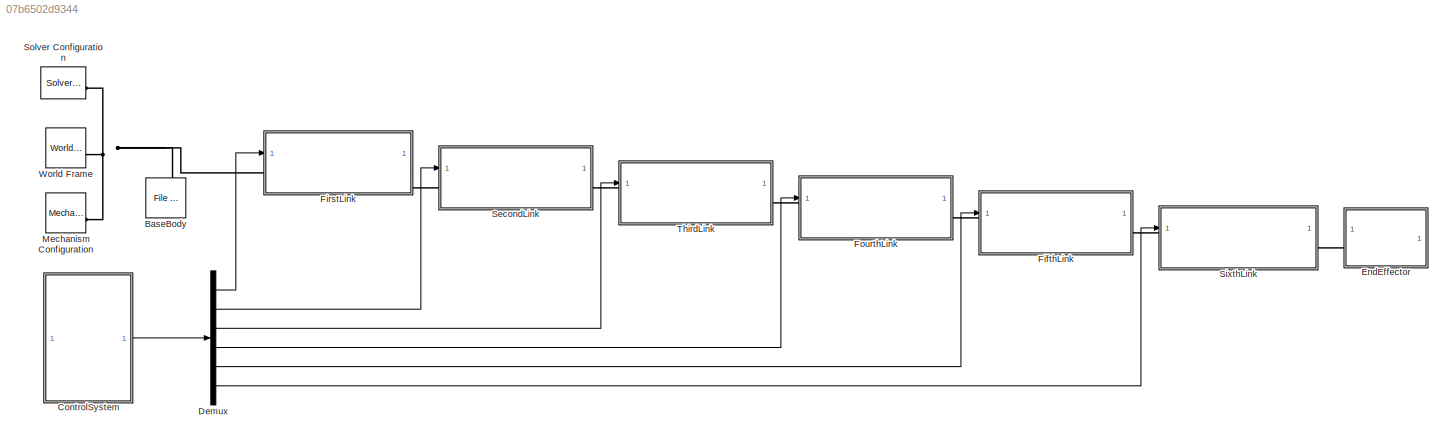
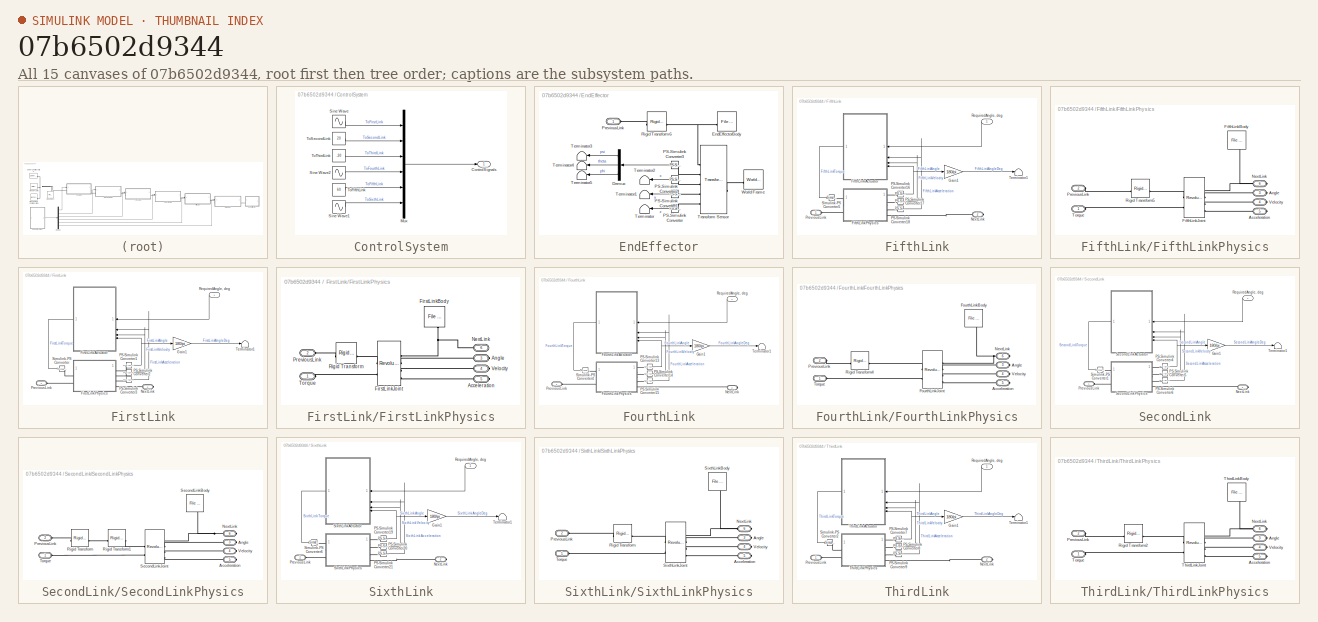
[diagram: thumbnail index - all 15 canvases of the model, root first then tree order]
MODEL slx_07b6502d9344
KIND model
CONFIG AbsTol = auto
CONFIG EnableMultiTasking = off
CONFIG FixedStep = auto
CONFIG MaxStep = 0.01
CONFIG MinStep = auto
CONFIG RelTol = 1e-3
CONFIG SampleTimeConstraint = Unconstrained
CONFIG SolverName = ode23t
CONFIG StartTime = 0.0
CONFIG StopTime = 20
BLOCK [Reference] BaseBody  REF=sm_lib/Body Elements/File Solid
  SourceBlock = sm_lib/Body Elements/File Solid
  SourceType = File Solid
BLOCK [SubSystem] ControlSystem
BLOCK [Outport] ControlSystem/ControlSignals
  NameLocation = right
BLOCK [Mux] ControlSystem/Mux
  DisplayOption = bar
  Inputs = 6
BLOCK [Sin] ControlSystem/Sine Wave
  Amplitude = 30
  Bias = 60
  SampleTime = 0
BLOCK [Sin] ControlSystem/Sine Wave1
  Amplitude = 60
  Bias = 45
  Frequency = 3
  SampleTime = 0
BLOCK [Sin] ControlSystem/Sine Wave2
  Amplitude = 15
  Bias = 45
  Frequency = 3
  SampleTime = 0
BLOCK [Constant] ControlSystem/ToFifthLink
  NameLocation = left
  Value = 60
BLOCK [Constant] ControlSystem/ToSecondLink
  NameLocation = left
  Value = 20
BLOCK [Constant] ControlSystem/ToThirdLink
  NameLocation = left
  Value = -30
BLOCK [Demux] Demux
  Outputs = 6
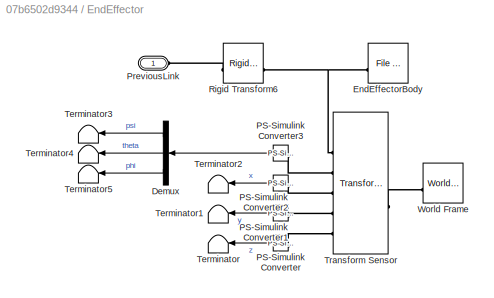
BLOCK [SubSystem] EndEffector
BLOCK [Demux] EndEffector/Demux
  NameLocation = top
  Outputs = 3
BLOCK [Reference] EndEffector/EndEffectorBody  REF=sm_lib/Body Elements/File Solid
  NameLocation = right
  SourceBlock = sm_lib/Body Elements/File Solid
  SourceType = File Solid
BLOCK [Reference] EndEffector/PS-Simulink Converter  REF=nesl_utility/PS-Simulink
Converter
  NameLocation = top
  SourceBlock = nesl_utility/PS-Simulink\nConverter
  SourceType = PS-Simulink\nConverter
BLOCK [Reference] EndEffector/PS-Simulink Converter1  REF=nesl_utility/PS-Simulink
Converter
  NameLocation = top
  SourceBlock = nesl_utility/PS-Simulink\nConverter
  SourceType = PS-Simulink\nConverter
BLOCK [Reference] EndEffector/PS-Simulink Converter2  REF=nesl_utility/PS-Simulink
Converter
  NameLocation = top
  SourceBlock = nesl_utility/PS-Simulink\nConverter
  SourceType = PS-Simulink\nConverter
BLOCK [Reference] EndEffector/PS-Simulink Converter3  REF=nesl_utility/PS-Simulink
Converter
  NameLocation = top
  SourceBlock = nesl_utility/PS-Simulink\nConverter
  SourceType = PS-Simulink\nConverter
BLOCK [PMIOPort] EndEffector/PreviousLink
  Side = Left
BLOCK [Reference] EndEffector/Rigid Transform6  REF=sm_lib/Frames and
Transforms/Rigid
Transform
  SourceBlock = sm_lib/Frames and\nTransforms/Rigid\nTransform
  SourceType = Rigid\nTransform
BLOCK [Terminator] EndEffector/Terminator
  NameLocation = top
BLOCK [Terminator] EndEffector/Terminator1
  NameLocation = top
BLOCK [Terminator] EndEffector/Terminator2
  NameLocation = top
BLOCK [Terminator] EndEffector/Terminator3
  NameLocation = top
BLOCK [Terminator] EndEffector/Terminator4
  NameLocation = top
BLOCK [Terminator] EndEffector/Terminator5
  NameLocation = top
BLOCK [Reference] EndEffector/Transform Sensor  REF=sm_lib/Frames and
Transforms/Transform
Sensor
  NameLocation = top
  SourceBlock = sm_lib/Frames and\nTransforms/Transform\nSensor
  SourceType = Transform\nSensor
BLOCK [Reference] EndEffector/World Frame  REF=sm_lib/Frames and
Transforms/World Frame
  NameLocation = top
  SourceBlock = sm_lib/Frames and\nTransforms/World Frame
  SourceType = World Frame
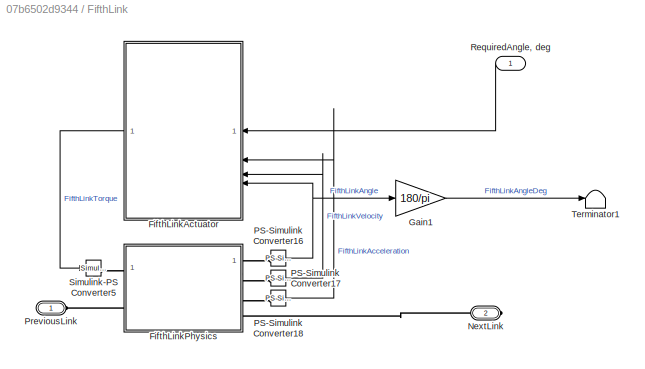
BLOCK [SubSystem] FifthLink
  PortSchema = {"entries":[{"content":{"sides":[{"content":{"connectorIds":["LConn1","In1"]},"type":"ConnectorPlacement.EquallySpacedRectSide","uuid":"59137c6e-e982-4e9a-8887-9c851b27c4d0"},{"content":{"connectorIds":["RConn1"],"side":"RIGHT"},"type":"ConnectorPlacement.EquallySpacedRectSide","uuid":"3006ed02-36e2-47dc-847a-44ef2bf55218"},{"content":{"side":"TOP"},"type":"ConnectorPlacement.EquallySpacedRectSide...<+233ch>  <repeated x6 — deduplicated; at blocks: FifthLink, FirstLink, FourthLink, SecondLink, SixthLink, ThirdLink>
BLOCK [SubSystem] FifthLink/FifthLinkActuator
  K = 10
  K1 = 0.05
  K2 = 10
  K3 = 100
  Kv = 10
  NameLocation = top
  ReferencedSubsystem = Actuator
  TreatAsAtomicUnit = on
BLOCK [SubSystem] FifthLink/FifthLinkPhysics
BLOCK [PMIOPort] FifthLink/FifthLinkPhysics/Acceleration
  NameLocation = right
  Port = 5
  Side = Right
BLOCK [PMIOPort] FifthLink/FifthLinkPhysics/Angle
  NameLocation = right
  Port = 3
  Side = Right
BLOCK [Reference] FifthLink/FifthLinkPhysics/FifthLinkBody  REF=sm_lib/Body Elements/File Solid
  NameLocation = top
  SourceBlock = sm_lib/Body Elements/File Solid
  SourceType = File Solid
BLOCK [Reference] FifthLink/FifthLinkPhysics/FifthLinkJoint  REF=sm_lib/Joints/Revolute Joint
  SourceBlock = sm_lib/Joints/Revolute Joint
  SourceType = Revolute Joint
BLOCK [PMIOPort] FifthLink/FifthLinkPhysics/NextLink
  NameLocation = right
  Port = 6
  Side = Right
BLOCK [PMIOPort] FifthLink/FifthLinkPhysics/PreviousLink
  Port = 2
  Side = Left
BLOCK [Reference] FifthLink/FifthLinkPhysics/Rigid Transform5  REF=sm_lib/Frames and
Transforms/Rigid
Transform
  SourceBlock = sm_lib/Frames and\nTransforms/Rigid\nTransform
  SourceType = Rigid\nTransform
BLOCK [PMIOPort] FifthLink/FifthLinkPhysics/Torque
  Side = Left
BLOCK [PMIOPort] FifthLink/FifthLinkPhysics/Velocity
  NameLocation = right
  Port = 4
  Side = Right
BLOCK [Gain] FifthLink/Gain1
  Gain = 180/pi
BLOCK [PMIOPort] FifthLink/NextLink
  Port = 2
  Side = Right
BLOCK [Reference] FifthLink/PS-Simulink Converter16  REF=nesl_utility/PS-Simulink
Converter
  SourceBlock = nesl_utility/PS-Simulink\nConverter
  SourceType = PS-Simulink\nConverter
BLOCK [Reference] FifthLink/PS-Simulink Converter17  REF=nesl_utility/PS-Simulink
Converter
  SourceBlock = nesl_utility/PS-Simulink\nConverter
  SourceType = PS-Simulink\nConverter
BLOCK [Reference] FifthLink/PS-Simulink Converter18  REF=nesl_utility/PS-Simulink
Converter
  SourceBlock = nesl_utility/PS-Simulink\nConverter
  SourceType = PS-Simulink\nConverter
BLOCK [PMIOPort] FifthLink/PreviousLink
  Side = Left
BLOCK [Inport] FifthLink/RequiredAngle, deg
  NameLocation = top
BLOCK [Reference] FifthLink/Simulink-PS Converter5  REF=nesl_utility/Simulink-PS
Converter
  SourceBlock = nesl_utility/Simulink-PS\nConverter
  SourceType = Simulink-PS\nConverter
BLOCK [Terminator] FifthLink/Terminator1
BLOCK [SubSystem] FirstLink
BLOCK [SubSystem] FirstLink/FirstLinkActuator
  K = 10
  K1 = 0.05
  K2 = 10
  K3 = 300
  Kv = 10
  NameLocation = top
  ReferencedSubsystem = Actuator
  TreatAsAtomicUnit = on
BLOCK [SubSystem] FirstLink/FirstLinkPhysics
BLOCK [PMIOPort] FirstLink/FirstLinkPhysics/Acceleration
  NameLocation = right
  Port = 5
  Side = Right
BLOCK [PMIOPort] FirstLink/FirstLinkPhysics/Angle
  NameLocation = right
  Port = 3
  Side = Right
BLOCK [Reference] FirstLink/FirstLinkPhysics/FirstLinkBody  REF=sm_lib/Body Elements/File Solid
  NameLocation = top
  SourceBlock = sm_lib/Body Elements/File Solid
  SourceType = File Solid
BLOCK [Reference] FirstLink/FirstLinkPhysics/FirstLinkJoint  REF=sm_lib/Joints/Revolute Joint
  SourceBlock = sm_lib/Joints/Revolute Joint
  SourceType = Revolute Joint
BLOCK [PMIOPort] FirstLink/FirstLinkPhysics/NextLink
  NameLocation = right
  Port = 6
  Side = Right
BLOCK [PMIOPort] FirstLink/FirstLinkPhysics/PreviousLink
  Port = 2
  Side = Left
BLOCK [Reference] FirstLink/FirstLinkPhysics/Rigid Transform  REF=sm_lib/Frames and
Transforms/Rigid
Transform
  NameLocation = top
  SourceBlock = sm_lib/Frames and\nTransforms/Rigid\nTransform
  SourceType = Rigid\nTransform
BLOCK [PMIOPort] FirstLink/FirstLinkPhysics/Torque
  Side = Left
BLOCK [PMIOPort] FirstLink/FirstLinkPhysics/Velocity
  NameLocation = right
  Port = 4
  Side = Right
BLOCK [Gain] FirstLink/Gain1
  Gain = 180/pi
BLOCK [PMIOPort] FirstLink/NextLink
  Port = 2
  Side = Right
BLOCK [Reference] FirstLink/PS-Simulink Converter1  REF=nesl_utility/PS-Simulink
Converter
  SourceBlock = nesl_utility/PS-Simulink\nConverter
  SourceType = PS-Simulink\nConverter
BLOCK [Reference] FirstLink/PS-Simulink Converter2  REF=nesl_utility/PS-Simulink
Converter
  SourceBlock = nesl_utility/PS-Simulink\nConverter
  SourceType = PS-Simulink\nConverter
BLOCK [Reference] FirstLink/PS-Simulink Converter3  REF=nesl_utility/PS-Simulink
Converter
  SourceBlock = nesl_utility/PS-Simulink\nConverter
  SourceType = PS-Simulink\nConverter
BLOCK [PMIOPort] FirstLink/PreviousLink
  Side = Left
BLOCK [Inport] FirstLink/RequiredAngle, deg
  NameLocation = top
BLOCK [Reference] FirstLink/Simulink-PS Converter  REF=nesl_utility/Simulink-PS
Converter
  SourceBlock = nesl_utility/Simulink-PS\nConverter
  SourceType = Simulink-PS\nConverter
BLOCK [Terminator] FirstLink/Terminator1
BLOCK [SubSystem] FourthLink
BLOCK [SubSystem] FourthLink/FourthLinkActuator
  K = 10
  K1 = 0.05
  K2 = 10
  K3 = 100
  Kv = 10
  NameLocation = top
  ReferencedSubsystem = Actuator
  TreatAsAtomicUnit = on
BLOCK [SubSystem] FourthLink/FourthLinkPhysics
BLOCK [PMIOPort] FourthLink/FourthLinkPhysics/Acceleration
  NameLocation = right
  Port = 5
  Side = Right
BLOCK [PMIOPort] FourthLink/FourthLinkPhysics/Angle
  NameLocation = right
  Port = 3
  Side = Right
BLOCK [Reference] FourthLink/FourthLinkPhysics/FourthLinkBody  REF=sm_lib/Body Elements/File Solid
  NameLocation = top
  SourceBlock = sm_lib/Body Elements/File Solid
  SourceType = File Solid
BLOCK [Reference] FourthLink/FourthLinkPhysics/FourthLinkJoint  REF=sm_lib/Joints/Revolute Joint
  SourceBlock = sm_lib/Joints/Revolute Joint
  SourceType = Revolute Joint
BLOCK [PMIOPort] FourthLink/FourthLinkPhysics/NextLink
  NameLocation = right
  Port = 6
  Side = Right
BLOCK [PMIOPort] FourthLink/FourthLinkPhysics/PreviousLink
  Port = 2
  Side = Left
BLOCK [Reference] FourthLink/FourthLinkPhysics/Rigid Transform4  REF=sm_lib/Frames and
Transforms/Rigid
Transform
  SourceBlock = sm_lib/Frames and\nTransforms/Rigid\nTransform
  SourceType = Rigid\nTransform
BLOCK [PMIOPort] FourthLink/FourthLinkPhysics/Torque
  Side = Left
BLOCK [PMIOPort] FourthLink/FourthLinkPhysics/Velocity
  NameLocation = right
  Port = 4
  Side = Right
BLOCK [Gain] FourthLink/Gain1
  Gain = 180/pi
BLOCK [PMIOPort] FourthLink/NextLink
  Port = 2
  Side = Right
BLOCK [Reference] FourthLink/PS-Simulink Converter13  REF=nesl_utility/PS-Simulink
Converter
  SourceBlock = nesl_utility/PS-Simulink\nConverter
  SourceType = PS-Simulink\nConverter
BLOCK [Reference] FourthLink/PS-Simulink Converter14  REF=nesl_utility/PS-Simulink
Converter
  SourceBlock = nesl_utility/PS-Simulink\nConverter
  SourceType = PS-Simulink\nConverter
BLOCK [Reference] FourthLink/PS-Simulink Converter15  REF=nesl_utility/PS-Simulink
Converter
  SourceBlock = nesl_utility/PS-Simulink\nConverter
  SourceType = PS-Simulink\nConverter
BLOCK [PMIOPort] FourthLink/PreviousLink
  Side = Left
BLOCK [Inport] FourthLink/RequiredAngle, deg
  NameLocation = top
BLOCK [Reference] FourthLink/Simulink-PS Converter4  REF=nesl_utility/Simulink-PS
Converter
  SourceBlock = nesl_utility/Simulink-PS\nConverter
  SourceType = Simulink-PS\nConverter
BLOCK [Terminator] FourthLink/Terminator1
BLOCK [Reference] Mechanism Configuration  REF=sm_lib/Utilities/Mechanism
Configuration
  SourceBlock = sm_lib/Utilities/Mechanism\nConfiguration
  SourceType = Mechanism\nConfiguration
BLOCK [SubSystem] SecondLink
BLOCK [Gain] SecondLink/Gain1
  Gain = 180/pi
BLOCK [PMIOPort] SecondLink/NextLink
  Port = 2
  Side = Right
BLOCK [Reference] SecondLink/PS-Simulink Converter4  REF=nesl_utility/PS-Simulink
Converter
  SourceBlock = nesl_utility/PS-Simulink\nConverter
  SourceType = PS-Simulink\nConverter
BLOCK [Reference] SecondLink/PS-Simulink Converter5  REF=nesl_utility/PS-Simulink
Converter
  SourceBlock = nesl_utility/PS-Simulink\nConverter
  SourceType = PS-Simulink\nConverter
BLOCK [Reference] SecondLink/PS-Simulink Converter6  REF=nesl_utility/PS-Simulink
Converter
  SourceBlock = nesl_utility/PS-Simulink\nConverter
  SourceType = PS-Simulink\nConverter
BLOCK [PMIOPort] SecondLink/PreviousLink
  Side = Left
BLOCK [Inport] SecondLink/RequiredAngle, deg
  NameLocation = top
BLOCK [SubSystem] SecondLink/SecondLinkActuator
  K = 10
  K1 = 0.05
  K2 = 50
  K3 = 100
  Kv = 15
  NameLocation = top
  ReferencedSubsystem = Actuator
  TreatAsAtomicUnit = on
BLOCK [SubSystem] SecondLink/SecondLinkPhysics
BLOCK [PMIOPort] SecondLink/SecondLinkPhysics/Acceleration
  NameLocation = right
  Port = 5
  Side = Right
BLOCK [PMIOPort] SecondLink/SecondLinkPhysics/Angle
  NameLocation = right
  Port = 3
  Side = Right
BLOCK [PMIOPort] SecondLink/SecondLinkPhysics/NextLink
  NameLocation = right
  Port = 6
  Side = Right
BLOCK [PMIOPort] SecondLink/SecondLinkPhysics/PreviousLink
  Port = 2
  Side = Left
BLOCK [Reference] SecondLink/SecondLinkPhysics/Rigid Transform  REF=sm_lib/Frames and
Transforms/Rigid
Transform
  SourceBlock = sm_lib/Frames and\nTransforms/Rigid\nTransform
  SourceType = Rigid\nTransform
BLOCK [Reference] SecondLink/SecondLinkPhysics/Rigid Transform1  REF=sm_lib/Frames and
Transforms/Rigid
Transform
  SourceBlock = sm_lib/Frames and\nTransforms/Rigid\nTransform
  SourceType = Rigid\nTransform
BLOCK [Reference] SecondLink/SecondLinkPhysics/SecondLinkBody  REF=sm_lib/Body Elements/File Solid
  NameLocation = top
  SourceBlock = sm_lib/Body Elements/File Solid
  SourceType = File Solid
BLOCK [Reference] SecondLink/SecondLinkPhysics/SecondLinkJoint  REF=sm_lib/Joints/Revolute Joint
  SourceBlock = sm_lib/Joints/Revolute Joint
  SourceType = Revolute Joint
BLOCK [PMIOPort] SecondLink/SecondLinkPhysics/Torque
  Side = Left
BLOCK [PMIOPort] SecondLink/SecondLinkPhysics/Velocity
  NameLocation = right
  Port = 4
  Side = Right
BLOCK [Reference] SecondLink/Simulink-PS Converter1  REF=nesl_utility/Simulink-PS
Converter
  SourceBlock = nesl_utility/Simulink-PS\nConverter
  SourceType = Simulink-PS\nConverter
BLOCK [Terminator] SecondLink/Terminator1
BLOCK [SubSystem] SixthLink
BLOCK [Gain] SixthLink/Gain1
  Gain = 180/pi
BLOCK [PMIOPort] SixthLink/NextLink
  Port = 2
  Side = Right
BLOCK [Reference] SixthLink/PS-Simulink Converter19  REF=nesl_utility/PS-Simulink
Converter
  SourceBlock = nesl_utility/PS-Simulink\nConverter
  SourceType = PS-Simulink\nConverter
BLOCK [Reference] SixthLink/PS-Simulink Converter20  REF=nesl_utility/PS-Simulink
Converter
  SourceBlock = nesl_utility/PS-Simulink\nConverter
  SourceType = PS-Simulink\nConverter
BLOCK [Reference] SixthLink/PS-Simulink Converter21  REF=nesl_utility/PS-Simulink
Converter
  SourceBlock = nesl_utility/PS-Simulink\nConverter
  SourceType = PS-Simulink\nConverter
BLOCK [PMIOPort] SixthLink/PreviousLink
  Side = Left
BLOCK [Inport] SixthLink/RequiredAngle, deg
  NameLocation = top
BLOCK [Reference] SixthLink/Simulink-PS Converter6  REF=nesl_utility/Simulink-PS
Converter
  SourceBlock = nesl_utility/Simulink-PS\nConverter
  SourceType = Simulink-PS\nConverter
BLOCK [SubSystem] SixthLink/SixthLinkActuator
  K = 10
  K1 = 0.05
  K2 = 10
  K3 = 100
  Kv = 10
  NameLocation = top
  ReferencedSubsystem = Actuator
  TreatAsAtomicUnit = on
BLOCK [SubSystem] SixthLink/SixthLinkPhysics
BLOCK [PMIOPort] SixthLink/SixthLinkPhysics/Acceleration
  NameLocation = right
  Port = 5
  Side = Right
BLOCK [PMIOPort] SixthLink/SixthLinkPhysics/Angle
  NameLocation = right
  Port = 3
  Side = Right
BLOCK [PMIOPort] SixthLink/SixthLinkPhysics/NextLink
  NameLocation = right
  Port = 6
  Side = Right
BLOCK [PMIOPort] SixthLink/SixthLinkPhysics/PreviousLink
  Port = 2
  Side = Left
BLOCK [Reference] SixthLink/SixthLinkPhysics/Rigid Transform  REF=sm_lib/Frames and
Transforms/Rigid
Transform
  NameLocation = top
  SourceBlock = sm_lib/Frames and\nTransforms/Rigid\nTransform
  SourceType = Rigid\nTransform
BLOCK [Reference] SixthLink/SixthLinkPhysics/SixthLinkBody  REF=sm_lib/Body Elements/File Solid
  NameLocation = top
  SourceBlock = sm_lib/Body Elements/File Solid
  SourceType = File Solid
BLOCK [Reference] SixthLink/SixthLinkPhysics/SixthLinkJoint  REF=sm_lib/Joints/Revolute Joint
  SourceBlock = sm_lib/Joints/Revolute Joint
  SourceType = Revolute Joint
BLOCK [PMIOPort] SixthLink/SixthLinkPhysics/Torque
  Side = Left
BLOCK [PMIOPort] SixthLink/SixthLinkPhysics/Velocity
  NameLocation = right
  Port = 4
  Side = Right
BLOCK [Terminator] SixthLink/Terminator1
BLOCK [Reference] Solver Configuration  REF=nesl_utility/Solver
Configuration
  SourceBlock = nesl_utility/Solver\nConfiguration
  SourceType = Solver\nConfiguration
BLOCK [SubSystem] ThirdLink
BLOCK [Gain] ThirdLink/Gain1
  Gain = 180/pi
BLOCK [PMIOPort] ThirdLink/NextLink
  Port = 2
  Side = Right
BLOCK [Reference] ThirdLink/PS-Simulink Converter7  REF=nesl_utility/PS-Simulink
Converter
  SourceBlock = nesl_utility/PS-Simulink\nConverter
  SourceType = PS-Simulink\nConverter
BLOCK [Reference] ThirdLink/PS-Simulink Converter8  REF=nesl_utility/PS-Simulink
Converter
  SourceBlock = nesl_utility/PS-Simulink\nConverter
  SourceType = PS-Simulink\nConverter
BLOCK [Reference] ThirdLink/PS-Simulink Converter9  REF=nesl_utility/PS-Simulink
Converter
  SourceBlock = nesl_utility/PS-Simulink\nConverter
  SourceType = PS-Simulink\nConverter
BLOCK [PMIOPort] ThirdLink/PreviousLink
  Side = Left
BLOCK [Inport] ThirdLink/RequiredAngle, deg
  NameLocation = top
BLOCK [Reference] ThirdLink/Simulink-PS Converter2  REF=nesl_utility/Simulink-PS
Converter
  SourceBlock = nesl_utility/Simulink-PS\nConverter
  SourceType = Simulink-PS\nConverter
BLOCK [Terminator] ThirdLink/Terminator1
BLOCK [SubSystem] ThirdLink/ThirdLinkActuator
  K = 10
  K1 = 0.05
  K2 = 10
  K3 = 1000
  Kv = 10
  NameLocation = top
  ReferencedSubsystem = Actuator
  TreatAsAtomicUnit = on
BLOCK [SubSystem] ThirdLink/ThirdLinkPhysics
BLOCK [PMIOPort] ThirdLink/ThirdLinkPhysics/Acceleration
  NameLocation = right
  Port = 5
  Side = Right
BLOCK [PMIOPort] ThirdLink/ThirdLinkPhysics/Angle
  NameLocation = right
  Port = 3
  Side = Right
BLOCK [PMIOPort] ThirdLink/ThirdLinkPhysics/NextLink
  NameLocation = right
  Port = 6
  Side = Right
BLOCK [PMIOPort] ThirdLink/ThirdLinkPhysics/PreviousLink
  Port = 2
  Side = Left
BLOCK [Reference] ThirdLink/ThirdLinkPhysics/Rigid Transform2  REF=sm_lib/Frames and
Transforms/Rigid
Transform
  SourceBlock = sm_lib/Frames and\nTransforms/Rigid\nTransform
  SourceType = Rigid\nTransform
BLOCK [Reference] ThirdLink/ThirdLinkPhysics/ThirdLinkBody  REF=sm_lib/Body Elements/File Solid
  NameLocation = top
  SourceBlock = sm_lib/Body Elements/File Solid
  SourceType = File Solid
BLOCK [Reference] ThirdLink/ThirdLinkPhysics/ThirdLinkJoint  REF=sm_lib/Joints/Revolute Joint
  SourceBlock = sm_lib/Joints/Revolute Joint
  SourceType = Revolute Joint
BLOCK [PMIOPort] ThirdLink/ThirdLinkPhysics/Torque
  Side = Left
BLOCK [PMIOPort] ThirdLink/ThirdLinkPhysics/Velocity
  NameLocation = right
  Port = 4
  Side = Right
BLOCK [Reference] World Frame  REF=sm_lib/Frames and
Transforms/World Frame
  SourceBlock = sm_lib/Frames and\nTransforms/World Frame
  SourceType = World Frame
LINE ControlSystem/Mux:1 -> ControlSystem/ControlSignals:1
LINE ControlSystem/Sine Wave1:1 -> ControlSystem/Mux:6
LINE ControlSystem/Sine Wave2:1 -> ControlSystem/Mux:4
LINE ControlSystem/Sine Wave:1 -> ControlSystem/Mux:1
LINE ControlSystem/ToFifthLink:1 -> ControlSystem/Mux:5
LINE ControlSystem/ToSecondLink:1 -> ControlSystem/Mux:2
LINE ControlSystem/ToThirdLink:1 -> ControlSystem/Mux:3
LINE ControlSystem:1 -> Demux:1
LINE Demux:1 -> FirstLink:1
LINE Demux:2 -> SecondLink:1
LINE Demux:3 -> ThirdLink:1
LINE Demux:4 -> FourthLink:1
LINE Demux:5 -> FifthLink:1
LINE Demux:6 -> SixthLink:1
LINE EndEffector/Demux:1 -> EndEffector/Terminator3:1
LINE EndEffector/Demux:2 -> EndEffector/Terminator4:1
LINE EndEffector/Demux:3 -> EndEffector/Terminator5:1
LINE EndEffector/PS-Simulink Converter1:1 -> EndEffector/Terminator1:1
LINE EndEffector/PS-Simulink Converter2:1 -> EndEffector/Terminator2:1
LINE EndEffector/PS-Simulink Converter3:1 -> EndEffector/Demux:1
LINE EndEffector/PS-Simulink Converter:1 -> EndEffector/Terminator:1
LINE FifthLink/FifthLinkActuator:1 -> FifthLink/Simulink-PS Converter5:1
LINE FifthLink/Gain1:1 -> FifthLink/Terminator1:1
NET FifthLink/PS-Simulink Converter16:1 -> FifthLink/FifthLinkActuator:4, FifthLink/Gain1:1
LINE FifthLink/PS-Simulink Converter17:1 -> FifthLink/FifthLinkActuator:3
LINE FifthLink/PS-Simulink Converter18:1 -> FifthLink/FifthLinkActuator:2
LINE FifthLink/RequiredAngle, deg:1 -> FifthLink/FifthLinkActuator:1
LINE FirstLink/FirstLinkActuator:1 -> FirstLink/Simulink-PS Converter:1
LINE FirstLink/Gain1:1 -> FirstLink/Terminator1:1
NET FirstLink/PS-Simulink Converter1:1 -> FirstLink/FirstLinkActuator:4, FirstLink/Gain1:1
LINE FirstLink/PS-Simulink Converter2:1 -> FirstLink/FirstLinkActuator:3
LINE FirstLink/PS-Simulink Converter3:1 -> FirstLink/FirstLinkActuator:2
LINE FirstLink/RequiredAngle, deg:1 -> FirstLink/FirstLinkActuator:1
LINE FourthLink/FourthLinkActuator:1 -> FourthLink/Simulink-PS Converter4:1
LINE FourthLink/Gain1:1 -> FourthLink/Terminator1:1
NET FourthLink/PS-Simulink Converter13:1 -> FourthLink/FourthLinkActuator:4, FourthLink/Gain1:1
LINE FourthLink/PS-Simulink Converter14:1 -> FourthLink/FourthLinkActuator:3
LINE FourthLink/PS-Simulink Converter15:1 -> FourthLink/FourthLinkActuator:2
LINE FourthLink/RequiredAngle, deg:1 -> FourthLink/FourthLinkActuator:1
LINE SecondLink/Gain1:1 -> SecondLink/Terminator1:1
NET SecondLink/PS-Simulink Converter4:1 -> SecondLink/Gain1:1, SecondLink/SecondLinkActuator:4
LINE SecondLink/PS-Simulink Converter5:1 -> SecondLink/SecondLinkActuator:3
LINE SecondLink/PS-Simulink Converter6:1 -> SecondLink/SecondLinkActuator:2
LINE SecondLink/RequiredAngle, deg:1 -> SecondLink/SecondLinkActuator:1
LINE SecondLink/SecondLinkActuator:1 -> SecondLink/Simulink-PS Converter1:1
LINE SixthLink/Gain1:1 -> SixthLink/Terminator1:1
NET SixthLink/PS-Simulink Converter19:1 -> SixthLink/Gain1:1, SixthLink/SixthLinkActuator:4
LINE SixthLink/PS-Simulink Converter20:1 -> SixthLink/SixthLinkActuator:3
LINE SixthLink/PS-Simulink Converter21:1 -> SixthLink/SixthLinkActuator:2
LINE SixthLink/RequiredAngle, deg:1 -> SixthLink/SixthLinkActuator:1
LINE SixthLink/SixthLinkActuator:1 -> SixthLink/Simulink-PS Converter6:1
LINE ThirdLink/Gain1:1 -> ThirdLink/Terminator1:1
NET ThirdLink/PS-Simulink Converter7:1 -> ThirdLink/Gain1:1, ThirdLink/ThirdLinkActuator:4
LINE ThirdLink/PS-Simulink Converter8:1 -> ThirdLink/ThirdLinkActuator:3
LINE ThirdLink/PS-Simulink Converter9:1 -> ThirdLink/ThirdLinkActuator:2
LINE ThirdLink/RequiredAngle, deg:1 -> ThirdLink/ThirdLinkActuator:1
LINE ThirdLink/ThirdLinkActuator:1 -> ThirdLink/Simulink-PS Converter2:1
PNET net1: BaseBody:RConn1 -- FirstLink:LConn1 -- Mechanism Configuration:RConn1 -- Solver Configuration:RConn1 -- World Frame:RConn1
PNET net2: EndEffector/EndEffectorBody:RConn1 -- EndEffector/Rigid Transform6:RConn1 -- EndEffector/Transform Sensor:RConn1
PLINE EndEffector/PS-Simulink Converter1:LConn1 -- EndEffector/Transform Sensor:RConn4
PLINE EndEffector/PS-Simulink Converter2:LConn1 -- EndEffector/Transform Sensor:RConn3
PLINE EndEffector/PS-Simulink Converter3:LConn1 -- EndEffector/Transform Sensor:RConn2
PLINE EndEffector/PS-Simulink Converter:LConn1 -- EndEffector/Transform Sensor:RConn5
PLINE EndEffector/PreviousLink:RConn1 -- EndEffector/Rigid Transform6:LConn1
PLINE EndEffector/Transform Sensor:LConn1 -- EndEffector/World Frame:RConn1
PLINE EndEffector:LConn1 -- SixthLink:RConn1
PLINE FifthLink/FifthLinkPhysics/Acceleration:RConn1 -- FifthLink/FifthLinkPhysics/FifthLinkJoint:RConn4
PLINE FifthLink/FifthLinkPhysics/Angle:RConn1 -- FifthLink/FifthLinkPhysics/FifthLinkJoint:RConn2
PNET net3: FifthLink/FifthLinkPhysics/FifthLinkBody:RConn1 -- FifthLink/FifthLinkPhysics/FifthLinkJoint:RConn1 -- FifthLink/FifthLinkPhysics/NextLink:RConn1
PLINE FifthLink/FifthLinkPhysics/FifthLinkJoint:LConn1 -- FifthLink/FifthLinkPhysics/Rigid Transform5:RConn1
PLINE FifthLink/FifthLinkPhysics/FifthLinkJoint:LConn2 -- FifthLink/FifthLinkPhysics/Torque:RConn1
PLINE FifthLink/FifthLinkPhysics/FifthLinkJoint:RConn3 -- FifthLink/FifthLinkPhysics/Velocity:RConn1
PLINE FifthLink/FifthLinkPhysics/PreviousLink:RConn1 -- FifthLink/FifthLinkPhysics/Rigid Transform5:LConn1
PLINE FifthLink/FifthLinkPhysics:LConn1 -- FifthLink/Simulink-PS Converter5:RConn1
PLINE FifthLink/FifthLinkPhysics:LConn2 -- FifthLink/PreviousLink:RConn1
PLINE FifthLink/FifthLinkPhysics:RConn1 -- FifthLink/PS-Simulink Converter16:LConn1
PLINE FifthLink/FifthLinkPhysics:RConn2 -- FifthLink/PS-Simulink Converter17:LConn1
PLINE FifthLink/FifthLinkPhysics:RConn3 -- FifthLink/PS-Simulink Converter18:LConn1
PLINE FifthLink/FifthLinkPhysics:RConn4 -- FifthLink/NextLink:RConn1
PLINE FifthLink:LConn1 -- FourthLink:RConn1
PLINE FifthLink:RConn1 -- SixthLink:LConn1
PLINE FirstLink/FirstLinkPhysics/Acceleration:RConn1 -- FirstLink/FirstLinkPhysics/FirstLinkJoint:RConn4
PLINE FirstLink/FirstLinkPhysics/Angle:RConn1 -- FirstLink/FirstLinkPhysics/FirstLinkJoint:RConn2
PNET net4: FirstLink/FirstLinkPhysics/FirstLinkBody:RConn1 -- FirstLink/FirstLinkPhysics/FirstLinkJoint:RConn1 -- FirstLink/FirstLinkPhysics/NextLink:RConn1
PLINE FirstLink/FirstLinkPhysics/FirstLinkJoint:LConn1 -- FirstLink/FirstLinkPhysics/Rigid Transform:RConn1
PLINE FirstLink/FirstLinkPhysics/FirstLinkJoint:LConn2 -- FirstLink/FirstLinkPhysics/Torque:RConn1
PLINE FirstLink/FirstLinkPhysics/FirstLinkJoint:RConn3 -- FirstLink/FirstLinkPhysics/Velocity:RConn1
PLINE FirstLink/FirstLinkPhysics/PreviousLink:RConn1 -- FirstLink/FirstLinkPhysics/Rigid Transform:LConn1
PLINE FirstLink/FirstLinkPhysics:LConn1 -- FirstLink/Simulink-PS Converter:RConn1
PLINE FirstLink/FirstLinkPhysics:LConn2 -- FirstLink/PreviousLink:RConn1
PLINE FirstLink/FirstLinkPhysics:RConn1 -- FirstLink/PS-Simulink Converter1:LConn1
PLINE FirstLink/FirstLinkPhysics:RConn2 -- FirstLink/PS-Simulink Converter2:LConn1
PLINE FirstLink/FirstLinkPhysics:RConn3 -- FirstLink/PS-Simulink Converter3:LConn1
PLINE FirstLink/FirstLinkPhysics:RConn4 -- FirstLink/NextLink:RConn1
PLINE FirstLink:RConn1 -- SecondLink:LConn1
PLINE FourthLink/FourthLinkPhysics/Acceleration:RConn1 -- FourthLink/FourthLinkPhysics/FourthLinkJoint:RConn4
PLINE FourthLink/FourthLinkPhysics/Angle:RConn1 -- FourthLink/FourthLinkPhysics/FourthLinkJoint:RConn2
PNET net5: FourthLink/FourthLinkPhysics/FourthLinkBody:RConn1 -- FourthLink/FourthLinkPhysics/FourthLinkJoint:RConn1 -- FourthLink/FourthLinkPhysics/NextLink:RConn1
PLINE FourthLink/FourthLinkPhysics/FourthLinkJoint:LConn1 -- FourthLink/FourthLinkPhysics/Rigid Transform4:RConn1
PLINE FourthLink/FourthLinkPhysics/FourthLinkJoint:LConn2 -- FourthLink/FourthLinkPhysics/Torque:RConn1
PLINE FourthLink/FourthLinkPhysics/FourthLinkJoint:RConn3 -- FourthLink/FourthLinkPhysics/Velocity:RConn1
PLINE FourthLink/FourthLinkPhysics/PreviousLink:RConn1 -- FourthLink/FourthLinkPhysics/Rigid Transform4:LConn1
PLINE FourthLink/FourthLinkPhysics:LConn1 -- FourthLink/Simulink-PS Converter4:RConn1
PLINE FourthLink/FourthLinkPhysics:LConn2 -- FourthLink/PreviousLink:RConn1
PLINE FourthLink/FourthLinkPhysics:RConn1 -- FourthLink/PS-Simulink Converter13:LConn1
PLINE FourthLink/FourthLinkPhysics:RConn2 -- FourthLink/PS-Simulink Converter14:LConn1
PLINE FourthLink/FourthLinkPhysics:RConn3 -- FourthLink/PS-Simulink Converter15:LConn1
PLINE FourthLink/FourthLinkPhysics:RConn4 -- FourthLink/NextLink:RConn1
PLINE FourthLink:LConn1 -- ThirdLink:RConn1
PLINE SecondLink/NextLink:RConn1 -- SecondLink/SecondLinkPhysics:RConn4
PLINE SecondLink/PS-Simulink Converter4:LConn1 -- SecondLink/SecondLinkPhysics:RConn1
PLINE SecondLink/PS-Simulink Converter5:LConn1 -- SecondLink/SecondLinkPhysics:RConn2
PLINE SecondLink/PS-Simulink Converter6:LConn1 -- SecondLink/SecondLinkPhysics:RConn3
PLINE SecondLink/PreviousLink:RConn1 -- SecondLink/SecondLinkPhysics:LConn2
PLINE SecondLink/SecondLinkPhysics/Acceleration:RConn1 -- SecondLink/SecondLinkPhysics/SecondLinkJoint:RConn4
PLINE SecondLink/SecondLinkPhysics/Angle:RConn1 -- SecondLink/SecondLinkPhysics/SecondLinkJoint:RConn2
PNET net6: SecondLink/SecondLinkPhysics/NextLink:RConn1 -- SecondLink/SecondLinkPhysics/SecondLinkBody:RConn1 -- SecondLink/SecondLinkPhysics/SecondLinkJoint:RConn1
PLINE SecondLink/SecondLinkPhysics/PreviousLink:RConn1 -- SecondLink/SecondLinkPhysics/Rigid Transform:LConn1
PLINE SecondLink/SecondLinkPhysics/Rigid Transform1:LConn1 -- SecondLink/SecondLinkPhysics/Rigid Transform:RConn1
PLINE SecondLink/SecondLinkPhysics/Rigid Transform1:RConn1 -- SecondLink/SecondLinkPhysics/SecondLinkJoint:LConn1
PLINE SecondLink/SecondLinkPhysics/SecondLinkJoint:LConn2 -- SecondLink/SecondLinkPhysics/Torque:RConn1
PLINE SecondLink/SecondLinkPhysics/SecondLinkJoint:RConn3 -- SecondLink/SecondLinkPhysics/Velocity:RConn1
PLINE SecondLink/SecondLinkPhysics:LConn1 -- SecondLink/Simulink-PS Converter1:RConn1
PLINE SecondLink:RConn1 -- ThirdLink:LConn1
PLINE SixthLink/NextLink:RConn1 -- SixthLink/SixthLinkPhysics:RConn4
PLINE SixthLink/PS-Simulink Converter19:LConn1 -- SixthLink/SixthLinkPhysics:RConn1
PLINE SixthLink/PS-Simulink Converter20:LConn1 -- SixthLink/SixthLinkPhysics:RConn2
PLINE SixthLink/PS-Simulink Converter21:LConn1 -- SixthLink/SixthLinkPhysics:RConn3
PLINE SixthLink/PreviousLink:RConn1 -- SixthLink/SixthLinkPhysics:LConn2
PLINE SixthLink/Simulink-PS Converter6:RConn1 -- SixthLink/SixthLinkPhysics:LConn1
PLINE SixthLink/SixthLinkPhysics/Acceleration:RConn1 -- SixthLink/SixthLinkPhysics/SixthLinkJoint:RConn4
PLINE SixthLink/SixthLinkPhysics/Angle:RConn1 -- SixthLink/SixthLinkPhysics/SixthLinkJoint:RConn2
PNET net7: SixthLink/SixthLinkPhysics/NextLink:RConn1 -- SixthLink/SixthLinkPhysics/SixthLinkBody:RConn1 -- SixthLink/SixthLinkPhysics/SixthLinkJoint:RConn1
PLINE SixthLink/SixthLinkPhysics/PreviousLink:RConn1 -- SixthLink/SixthLinkPhysics/Rigid Transform:LConn1
PLINE SixthLink/SixthLinkPhysics/Rigid Transform:RConn1 -- SixthLink/SixthLinkPhysics/SixthLinkJoint:LConn1
PLINE SixthLink/SixthLinkPhysics/SixthLinkJoint:LConn2 -- SixthLink/SixthLinkPhysics/Torque:RConn1
PLINE SixthLink/SixthLinkPhysics/SixthLinkJoint:RConn3 -- SixthLink/SixthLinkPhysics/Velocity:RConn1
PLINE ThirdLink/NextLink:RConn1 -- ThirdLink/ThirdLinkPhysics:RConn4
PLINE ThirdLink/PS-Simulink Converter7:LConn1 -- ThirdLink/ThirdLinkPhysics:RConn1
PLINE ThirdLink/PS-Simulink Converter8:LConn1 -- ThirdLink/ThirdLinkPhysics:RConn2
PLINE ThirdLink/PS-Simulink Converter9:LConn1 -- ThirdLink/ThirdLinkPhysics:RConn3
PLINE ThirdLink/PreviousLink:RConn1 -- ThirdLink/ThirdLinkPhysics:LConn2
PLINE ThirdLink/Simulink-PS Converter2:RConn1 -- ThirdLink/ThirdLinkPhysics:LConn1
PLINE ThirdLink/ThirdLinkPhysics/Acceleration:RConn1 -- ThirdLink/ThirdLinkPhysics/ThirdLinkJoint:RConn4
PLINE ThirdLink/ThirdLinkPhysics/Angle:RConn1 -- ThirdLink/ThirdLinkPhysics/ThirdLinkJoint:RConn2
PNET net8: ThirdLink/ThirdLinkPhysics/NextLink:RConn1 -- ThirdLink/ThirdLinkPhysics/ThirdLinkBody:RConn1 -- ThirdLink/ThirdLinkPhysics/ThirdLinkJoint:RConn1
PLINE ThirdLink/ThirdLinkPhysics/PreviousLink:RConn1 -- ThirdLink/ThirdLinkPhysics/Rigid Transform2:LConn1
PLINE ThirdLink/ThirdLinkPhysics/Rigid Transform2:RConn1 -- ThirdLink/ThirdLinkPhysics/ThirdLinkJoint:LConn1
PLINE ThirdLink/ThirdLinkPhysics/ThirdLinkJoint:LConn2 -- ThirdLink/ThirdLinkPhysics/Torque:RConn1
PLINE ThirdLink/ThirdLinkPhysics/ThirdLinkJoint:RConn3 -- ThirdLink/ThirdLinkPhysics/Velocity:RConn1
note: NET lines group one-source signal fan-out (src -> all destinations, sorted); 1:1 wires keep LINE; PNET lines group multi-terminal physical nets as a canonical sorted terminal list (undirected conserving connections); 2-terminal nets keep the pairwise PLINE form
